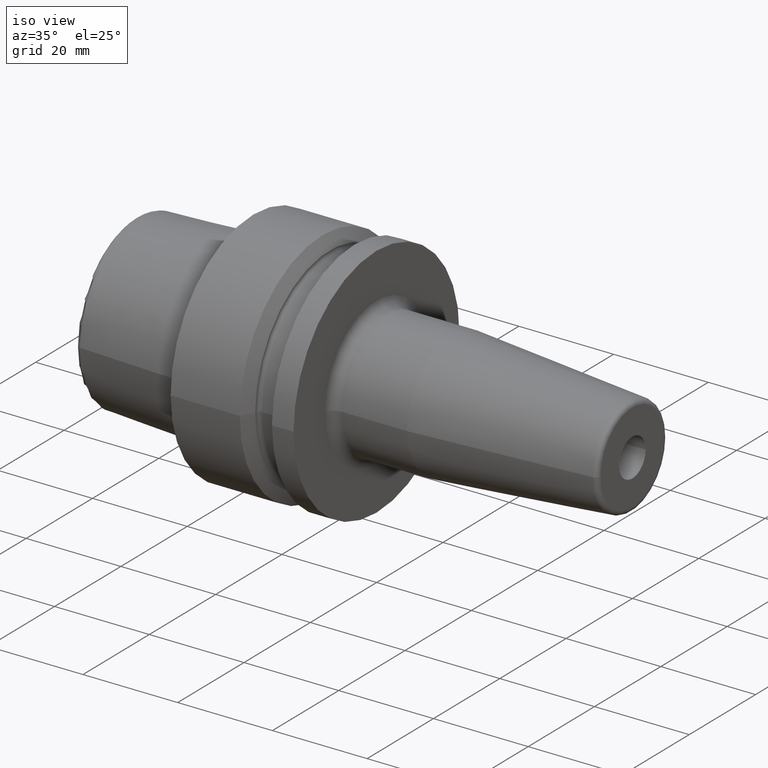
[diagram: clean part render]
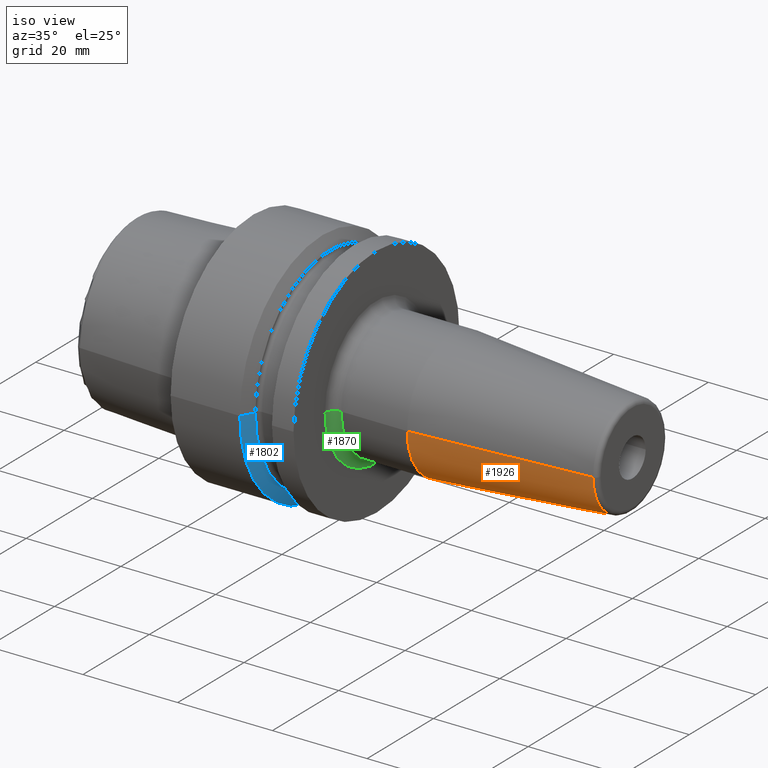
[diagram: same view with three faces highlighted in distinct colors, each labeled with its STEP entity id]
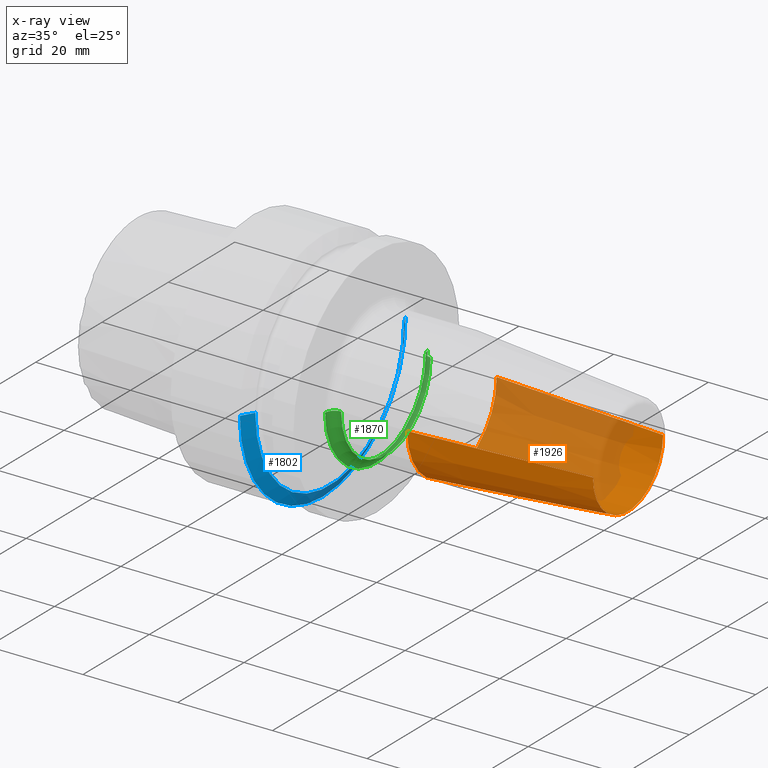
[diagram: x-ray of the same camera — body ghosted, the three highlighted faces saturated]
A machine part, iso view with three faces highlighted in distinct colors.
The next image is the same camera in x-ray (body ghosted, the three faces saturated) — at least one of them is partly hidden behind the body in this view.
Their STEP definitions:

[orange] entity #1926 — the highlighted conical surface has half-angle 4.5 deg.
#661=CARTESIAN_POINT('',(4.188138579148E1,0.E0,0.E0));
#662=DIRECTION('',(-1.E0,0.E0,0.E0));
#663=DIRECTION('',(0.E0,1.E0,0.E0));
#664=AXIS2_PLACEMENT_3D('',#661,#662,#663);
#670=CARTESIAN_POINT('',(7.907845909573E1,0.E0,0.E0));
#671=DIRECTION('',(-1.E0,0.E0,0.E0));
#672=DIRECTION('',(0.E0,1.E0,0.E0));
#673=AXIS2_PLACEMENT_3D('',#670,#671,#672);
#675=DIRECTION('',(-9.969173337331E-1,7.845909572784E-2,2.033291718278E-14));
#676=VECTOR('',#675,3.731209403789E1);
#677=CARTESIAN_POINT('',(7.907845909573E1,1.057252684207E1,
-7.570104448098E-13));
#678=LINE('',#677,#676);
#679=DIRECTION('',(-9.969173337331E-1,-7.845909572784E-2,-2.026138444019E-14));
#680=VECTOR('',#679,3.731209403789E1);
#681=CARTESIAN_POINT('',(7.907845909573E1,-1.057252684207E1,
7.543414083914E-13));
#682=LINE('',#681,#680);
#888=CARTESIAN_POINT('',(4.188138579148E1,1.35E1,0.E0));
#889=CARTESIAN_POINT('',(4.188138579148E1,-1.35E1,0.E0));
#890=VERTEX_POINT('',#888);
#891=VERTEX_POINT('',#889);
#900=CARTESIAN_POINT('',(7.907845909573E1,1.057252684207E1,0.E0));
#901=CARTESIAN_POINT('',(7.907845909573E1,-1.057252684207E1,0.E0));
#902=VERTEX_POINT('',#900);
#903=VERTEX_POINT('',#901);
#1912=CARTESIAN_POINT('',(6.047992244360E1,0.E0,0.E0));
#1913=DIRECTION('',(-1.E0,0.E0,0.E0));
#1914=DIRECTION('',(0.E0,1.E0,0.E0));
#1915=AXIS2_PLACEMENT_3D('',#1912,#1913,#1914);
#1916=CONICAL_SURFACE('',#1915,1.203626342104E1,4.5E0);
#1918=ORIENTED_EDGE('',*,*,#1917,.F.);
#1920=ORIENTED_EDGE('',*,*,#1919,.T.);
#1921=ORIENTED_EDGE('',*,*,#1906,.T.);
#1923=ORIENTED_EDGE('',*,*,#1922,.F.);
#1924=EDGE_LOOP('',(#1918,#1920,#1921,#1923));
#1925=FACE_OUTER_BOUND('',#1924,.F.);
#1926=ADVANCED_FACE('',(#1925),#1916,.T.);
#665=CIRCLE('',#664,1.35E1);
#674=CIRCLE('',#673,1.057252684207E1);
#1906=EDGE_CURVE('',#890,#891,#665,.T.);
#1917=EDGE_CURVE('',#902,#903,#674,.T.);
#1919=EDGE_CURVE('',#902,#890,#678,.T.);
#1922=EDGE_CURVE('',#903,#891,#682,.T.);

[blue] entity #1802 — the highlighted conical surface has half-angle 60 deg.
#573=CARTESIAN_POINT('',(1.60875E1,0.E0,0.E0));
#574=DIRECTION('',(-1.E0,0.E0,0.E0));
#575=DIRECTION('',(0.E0,1.E0,0.E0));
#576=AXIS2_PLACEMENT_3D('',#573,#574,#575);
#583=DIRECTION('',(5.E-1,-8.660254037844E-1,0.E0));
#584=VECTOR('',#583,2.958865662978E0);
#585=CARTESIAN_POINT('',(1.460806716851E1,2.5E1,0.E0));
#586=LINE('',#585,#584);
#587=DIRECTION('',(5.E-1,8.660254037844E-1,0.E0));
#588=VECTOR('',#587,2.958865662978E0);
#589=CARTESIAN_POINT('',(1.460806716851E1,-2.5E1,0.E0));
#590=LINE('',#589,#588);
#609=CARTESIAN_POINT('',(1.460806716851E1,0.E0,0.E0));
#610=DIRECTION('',(1.E0,0.E0,0.E0));
#611=DIRECTION('',(0.E0,-1.E0,0.E0));
#612=AXIS2_PLACEMENT_3D('',#609,#610,#611);
#792=CARTESIAN_POINT('',(1.60875E1,2.243754716948E1,0.E0));
#793=CARTESIAN_POINT('',(1.60875E1,-2.243754716948E1,0.E0));
#794=VERTEX_POINT('',#792);
#795=VERTEX_POINT('',#793);
#802=CARTESIAN_POINT('',(1.460806716851E1,2.5E1,0.E0));
#803=VERTEX_POINT('',#802);
#806=CARTESIAN_POINT('',(1.460806716851E1,-2.5E1,0.E0));
#807=VERTEX_POINT('',#806);
#1788=CARTESIAN_POINT('',(1.534778358426E1,0.E0,0.E0));
#1789=DIRECTION('',(-1.E0,0.E0,0.E0));
#1790=DIRECTION('',(0.E0,1.E0,0.E0));
#1791=AXIS2_PLACEMENT_3D('',#1788,#1789,#1790);
#1792=CONICAL_SURFACE('',#1791,2.371877358474E1,6.E1);
#1794=ORIENTED_EDGE('',*,*,#1793,.F.);
#1796=ORIENTED_EDGE('',*,*,#1795,.F.);
#1798=ORIENTED_EDGE('',*,*,#1797,.T.);
#1799=ORIENTED_EDGE('',*,*,#1777,.F.);
#1800=EDGE_LOOP('',(#1794,#1796,#1798,#1799));
#1801=FACE_OUTER_BOUND('',#1800,.F.);
#1802=ADVANCED_FACE('',(#1801),#1792,.T.);
#577=CIRCLE('',#576,2.243754716948E1);
#613=CIRCLE('',#612,2.5E1);
#1777=EDGE_CURVE('',#794,#795,#577,.T.);
#1793=EDGE_CURVE('',#803,#794,#586,.T.);
#1795=EDGE_CURVE('',#807,#803,#613,.T.);
#1797=EDGE_CURVE('',#807,#795,#590,.T.);

[green] entity #1870 — the highlighted toroidal blend (fillet) surface has major radius 15.5 mm and minor (blend) radius 2 mm.
#622=CARTESIAN_POINT('',(2.595E1,0.E0,0.E0));
#623=DIRECTION('',(1.E0,0.E0,0.E0));
#624=DIRECTION('',(0.E0,-1.E0,0.E0));
#625=AXIS2_PLACEMENT_3D('',#622,#623,#624);
#632=CARTESIAN_POINT('',(2.795E1,-1.55E1,5.602462938015E-14));
#633=DIRECTION('',(0.E0,0.E0,-1.E0));
#634=DIRECTION('',(-1.E0,0.E0,0.E0));
#635=AXIS2_PLACEMENT_3D('',#632,#633,#634);
#637=CARTESIAN_POINT('',(2.795E1,1.55E1,-6.493416915276E-14));
#638=DIRECTION('',(0.E0,0.E0,1.E0));
#639=DIRECTION('',(-1.E0,0.E0,0.E0));
#640=AXIS2_PLACEMENT_3D('',#637,#638,#639);
#652=CARTESIAN_POINT('',(2.795E1,0.E0,0.E0));
#653=DIRECTION('',(1.E0,0.E0,0.E0));
#654=DIRECTION('',(0.E0,-1.E0,0.E0));
#655=AXIS2_PLACEMENT_3D('',#652,#653,#654);
#892=CARTESIAN_POINT('',(2.595E1,-1.55E1,-1.756317058271E-14));
#893=CARTESIAN_POINT('',(2.595E1,1.55E1,0.E0));
#894=VERTEX_POINT('',#892);
#895=VERTEX_POINT('',#893);
#896=CARTESIAN_POINT('',(2.795E1,-1.35E1,0.E0));
#897=CARTESIAN_POINT('',(2.795E1,1.35E1,0.E0));
#898=VERTEX_POINT('',#896);
#899=VERTEX_POINT('',#897);
#1856=CARTESIAN_POINT('',(2.795E1,0.E0,0.E0));
#1857=DIRECTION('',(1.E0,0.E0,0.E0));
#1858=DIRECTION('',(0.E0,-9.999837828985E-1,5.695080325012E-3));
#1859=AXIS2_PLACEMENT_3D('',#1856,#1857,#1858);
#1860=TOROIDAL_SURFACE('',#1859,1.55E1,2.E0);
#1861=ORIENTED_EDGE('',*,*,#1849,.F.);
#1863=ORIENTED_EDGE('',*,*,#1862,.T.);
#1865=ORIENTED_EDGE('',*,*,#1864,.T.);
#1867=ORIENTED_EDGE('',*,*,#1866,.F.);
#1868=EDGE_LOOP('',(#1861,#1863,#1865,#1867));
#1869=FACE_OUTER_BOUND('',#1868,.F.);
#1870=ADVANCED_FACE('',(#1869),#1860,.F.);
#626=CIRCLE('',#625,1.55E1);
#636=CIRCLE('',#635,2.E0);
#641=CIRCLE('',#640,2.E0);
#656=CIRCLE('',#655,1.35E1);
#1849=EDGE_CURVE('',#894,#895,#626,.T.);
#1862=EDGE_CURVE('',#894,#898,#636,.T.);
#1864=EDGE_CURVE('',#898,#899,#656,.T.);
#1866=EDGE_CURVE('',#895,#899,#641,.T.);